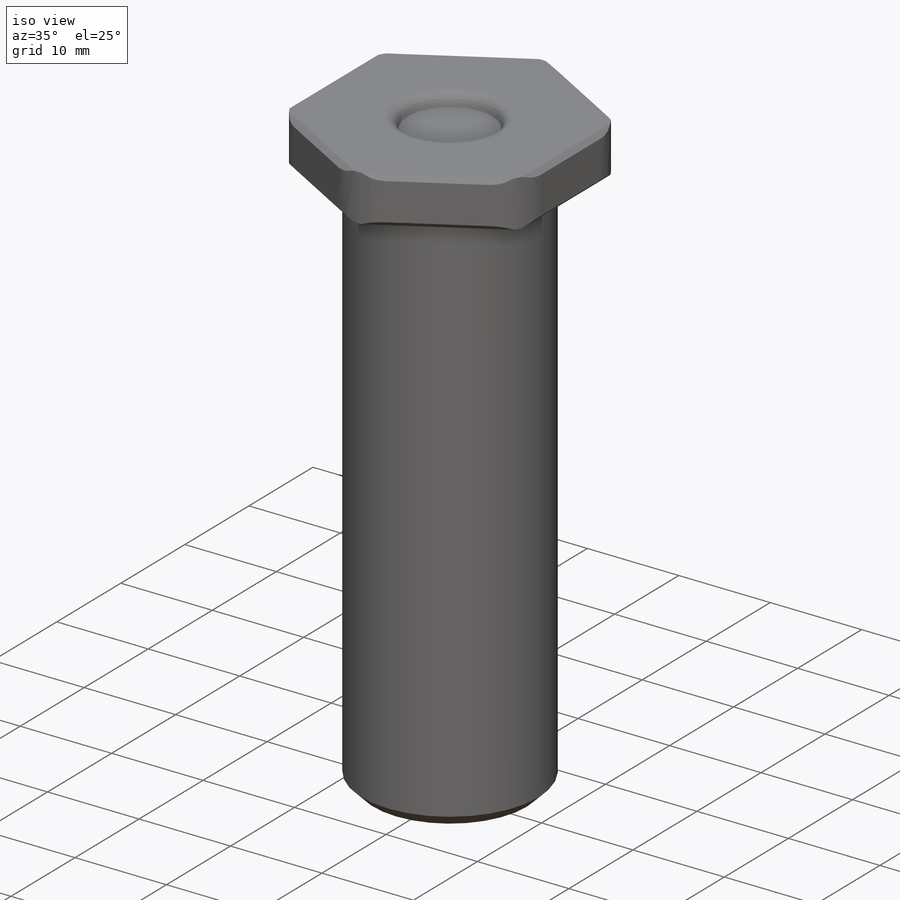
[diagram: iso view]
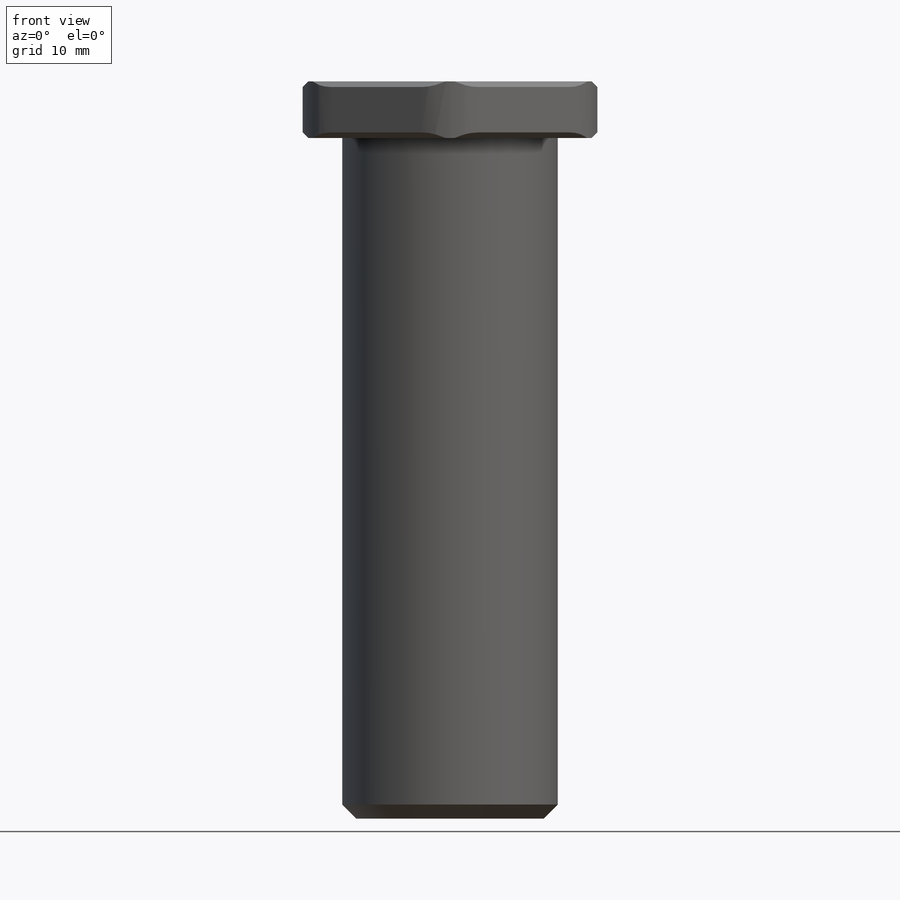
[diagram: front view]
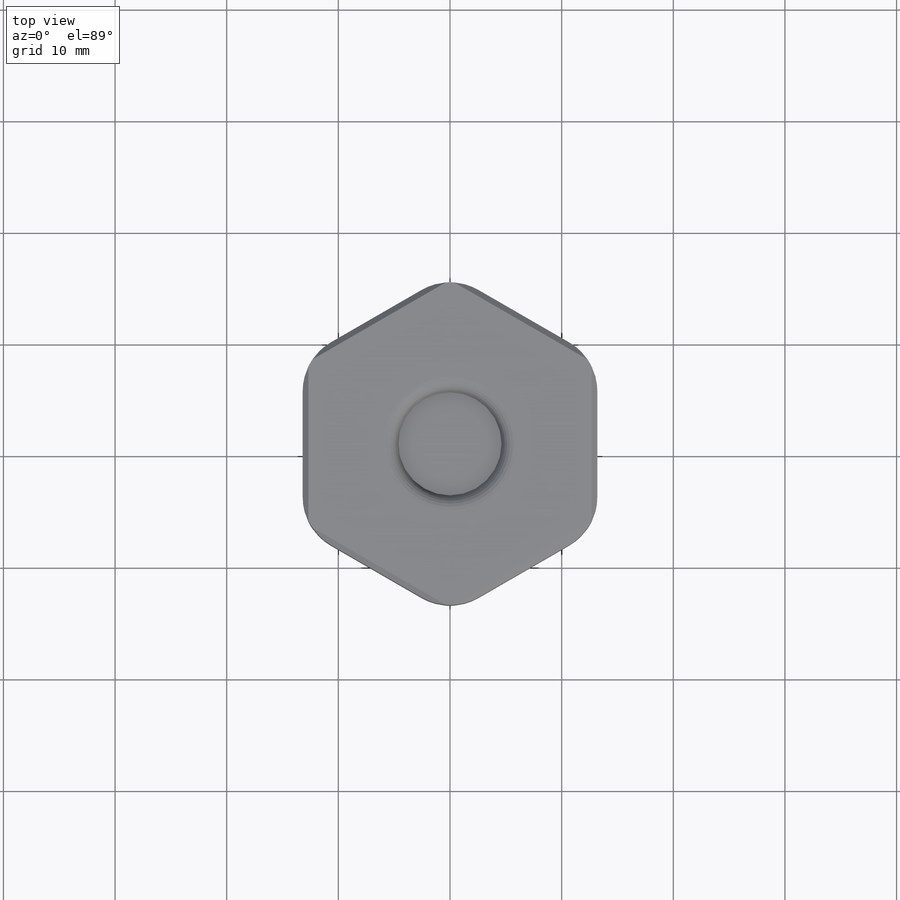
[diagram: top view]
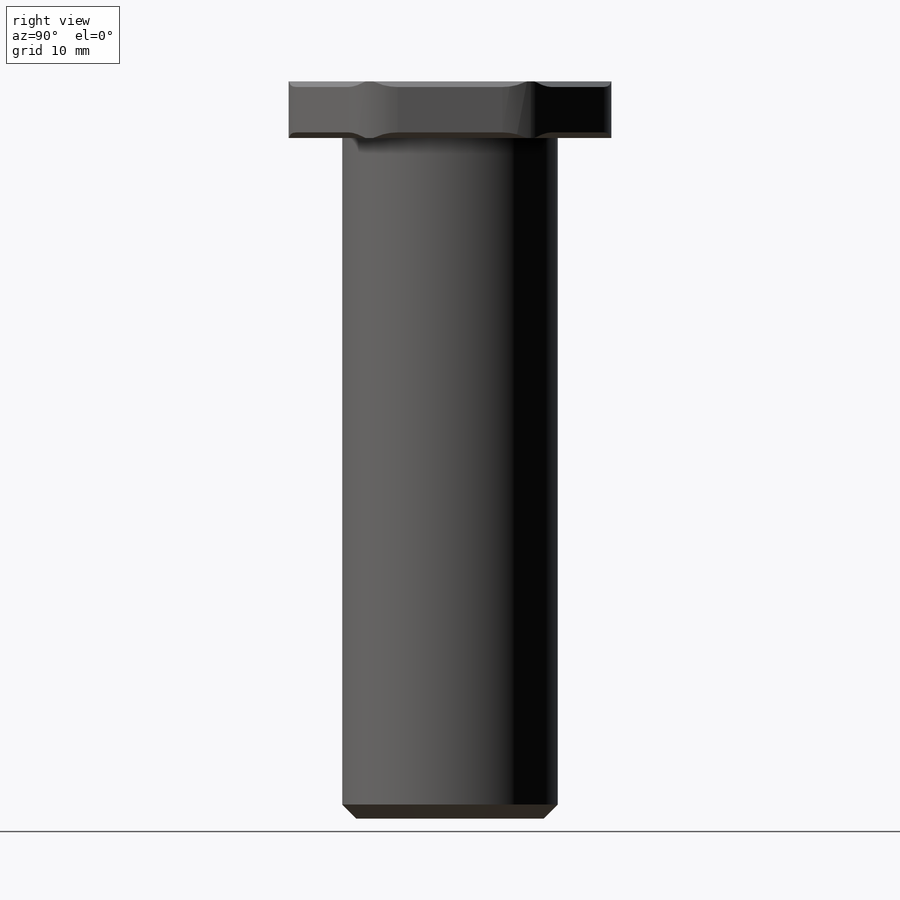
[diagram: right view]
SOLIDWORKS PART (.sldprt)
format: sldprt  version: not decoded by parser v0  size: 283,136 bytes
history: native  units: mm
features: sketch x3, extrude x2, chamfer x2, fillet x2, material x1, plane x1, cut_extrude x1 (+13 scaffold rows collapsed)
feature tree (25):
  scaffold x13  (default folders/planes/origin — collapsed)
  material  "Material <not specified>"
  sketch  "Sketch2"  dims[D1=19.304mm]
  extrude  "Boss-Extrude1"  Depth=63.5mm
  chamfer  "Chamfer1"  Distance=1.27mm Angle=45deg
  plane  "Plane1"
  sketch  "Sketch6"  dims[D1=15.24mm]
  extrude  "Boss-Extrude2"  Depth=5.08mm
  chamfer  "Chamfer2"  Distance=0.508mm Angle=45deg
  fillet  "Fillet1"  Radius=5.08mm
  sketch  "Sketch7"  dims[D1=10.16mm]
  cut_extrude  "Cut-Extrude1"  Depth=1.27mm
  fillet  "Fillet2"  Radius=1.27mm
decode coverage: 10 of 10 modeling features carry decoded parameters
note: suppression state not decoded; provenance and decode notes live in map.json
